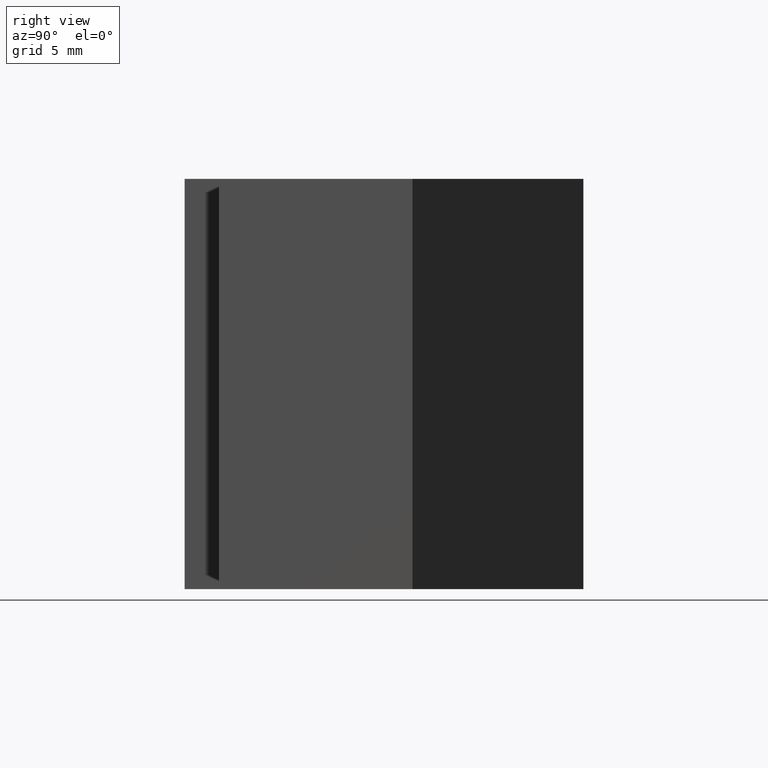
[diagram: clean part render]
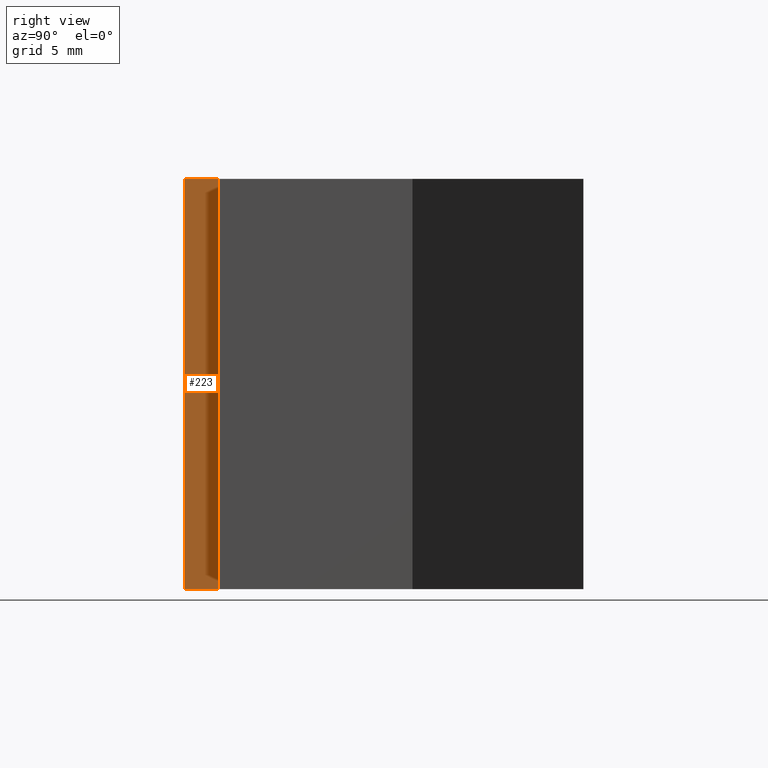
[diagram: same view with one face highlighted and labeled with its STEP entity id]
A machine part, right view. The second image highlights one B-rep face of the part: STEP entity #223.
In plain terms, the highlighted planar face has unit normal (1, 0, 0).
Its self-contained STEP definition (entity closure, byte-faithful):
#17=FACE_OUTER_BOUND('',#29,.T.);
#29=EDGE_LOOP('',(#160,#161,#162,#163));
#42=LINE('',#333,#72);
#50=LINE('',#350,#80);
#51=LINE('',#351,#81);
#52=LINE('',#352,#82);
#72=VECTOR('',#275,10.);
#80=VECTOR('',#285,10.);
#81=VECTOR('',#286,10.);
#82=VECTOR('',#287,10.);
#102=VERTEX_POINT('',#330);
#103=VERTEX_POINT('',#332);
#110=VERTEX_POINT('',#348);
#111=VERTEX_POINT('',#349);
#122=EDGE_CURVE('',#103,#102,#42,.T.);
#130=EDGE_CURVE('',#110,#111,#50,.T.);
#131=EDGE_CURVE('',#111,#103,#51,.T.);
#132=EDGE_CURVE('',#110,#102,#52,.T.);
#160=ORIENTED_EDGE('',*,*,#130,.T.);
#161=ORIENTED_EDGE('',*,*,#131,.T.);
#162=ORIENTED_EDGE('',*,*,#122,.T.);
#163=ORIENTED_EDGE('',*,*,#132,.F.);
#211=PLANE('',#258);
#223=ADVANCED_FACE('',(#17),#211,.T.);
#258=AXIS2_PLACEMENT_3D('',#347,#283,#284);
#275=DIRECTION('',(0.,1.,0.));
#283=DIRECTION('center_axis',(1.,0.,0.));
#284=DIRECTION('ref_axis',(0.,0.,-1.));
#285=DIRECTION('',(0.,-1.,0.));
#286=DIRECTION('',(0.,0.,-1.));
#287=DIRECTION('',(0.,0.,-1.));
#330=CARTESIAN_POINT('',(4.,-7.99999999999999,-9.));
#332=CARTESIAN_POINT('',(4.,-9.5,-9.));
#333=CARTESIAN_POINT('',(4.,-7.99999999999999,-9.));
#347=CARTESIAN_POINT('Origin',(4.,-7.99999999999999,0.));
#348=CARTESIAN_POINT('',(4.,-7.99999999999999,9.));
#349=CARTESIAN_POINT('',(4.,-9.5,9.));
#350=CARTESIAN_POINT('',(4.,-7.99999999999999,9.));
#351=CARTESIAN_POINT('',(4.,-9.5,0.));
#352=CARTESIAN_POINT('',(4.,-7.99999999999999,0.));